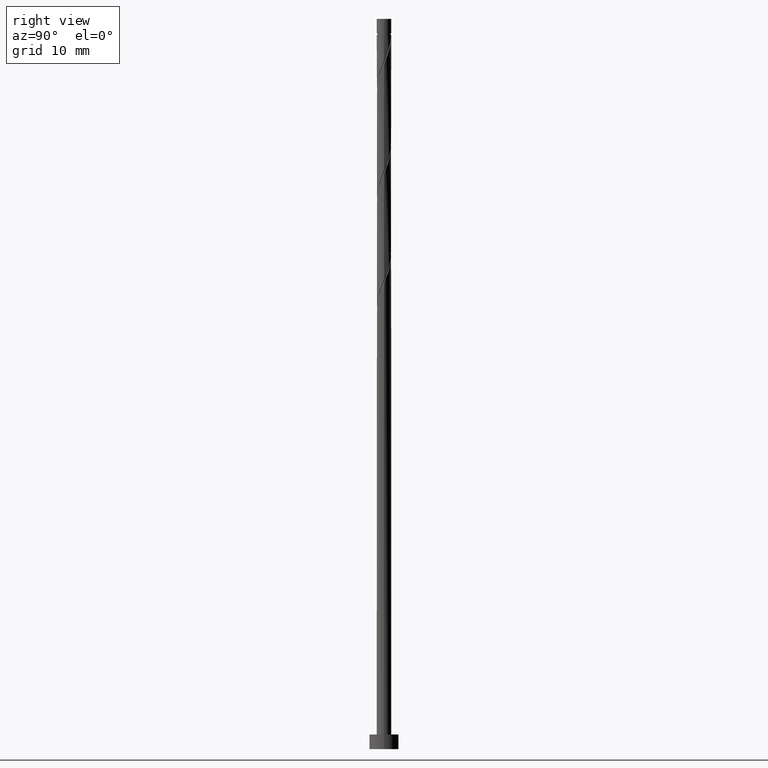
[diagram: clean part render]
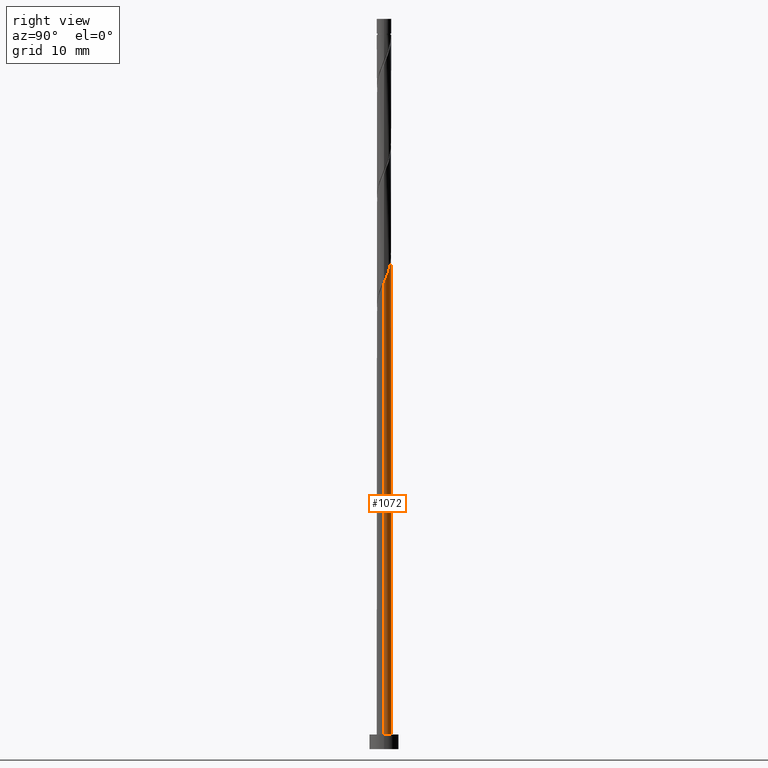
[diagram: same view with one face highlighted and labeled with its STEP entity id]
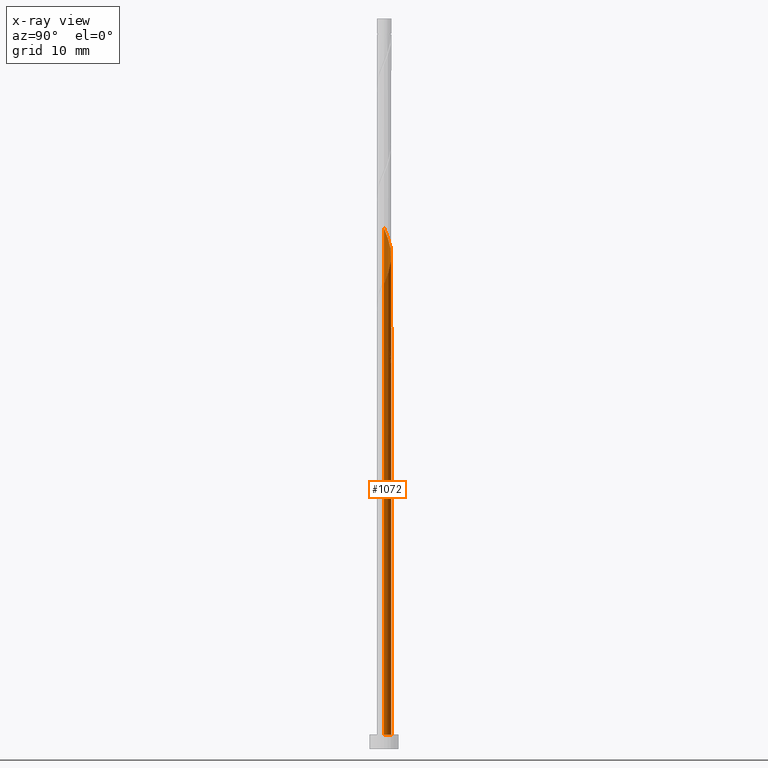
[diagram: x-ray of the same camera — body ghosted, the highlighted face saturated]
A machine part, right view. The second image highlights one B-rep face of the part: STEP entity #1072.
The next image is the same camera in x-ray: the body ghosted, the highlighted face saturated — about 0% of this face is hidden behind the body in this view.
In plain terms, the highlighted cylindrical surface (edge-blend (fillet) strip) has radius 1 mm, axis along (-0, -0, -1).
Its self-contained STEP definition (entity closure, byte-faithful):
#15 = VERTEX_POINT ( 'NONE', #653 ) ;
#18 = CARTESIAN_POINT ( 'NONE',  ( -1.000000000000000222, 1.930935673395703650E-16, 56.78964864647364408 ) ) ;
#27 = FACE_OUTER_BOUND ( 'NONE', #1441, .T. ) ;
#75 = LINE ( 'NONE', #97, #591 ) ;
#97 = CARTESIAN_POINT ( 'NONE',  ( -1.000000000000000000, 0.000000000000000000, 100.0000000000000000 ) ) ;
#114 = AXIS2_PLACEMENT_3D ( 'NONE', #815, #954, #134 ) ;
#118 = CARTESIAN_POINT ( 'NONE',  ( -0.9999999999999995559, 0.03726283816067638144, 71.22138669025331126 ) ) ;
#123 = CARTESIAN_POINT ( 'NONE',  ( 0.000000000000000000, 0.000000000000000000, 2.000000000000000000 ) ) ;
#134 = DIRECTION ( 'NONE',  ( -1.000000000000000000, 0.000000000000000000, 0.000000000000000000 ) ) ;
#168 = EDGE_CURVE ( 'NONE', #15, #1192, #75, .T. ) ;
#169 = VERTEX_POINT ( 'NONE', #1016 ) ;
#208 = VECTOR ( 'NONE', #928, 1000.000000000000000 ) ;
#214 = CARTESIAN_POINT ( 'NONE',  ( -0.9116327376541116800, 0.4110057805399690567, 70.29999999999999716 ) ) ;
#228 = AXIS2_PLACEMENT_3D ( 'NONE', #244, #1363, #1157 ) ;
#236 = EDGE_CURVE ( 'NONE', #902, #452, #1296, .T. ) ;
#244 = CARTESIAN_POINT ( 'NONE',  ( 0.000000000000000000, 0.000000000000000000, 52.79999999999999716 ) ) ;
#258 = CARTESIAN_POINT ( 'NONE',  ( -0.8117578158769209740, 0.5839942194600310499, 55.30000000000000426 ) ) ;
#278 = AXIS2_PLACEMENT_3D ( 'NONE', #123, #461, #893 ) ;
#281 = CARTESIAN_POINT ( 'NONE',  ( -0.2753202675821135870, 0.9773893565945337425, 53.21666666666666856 ) ) ;
#310 = CARTESIAN_POINT ( 'NONE',  ( -1.000000000000000000, 0.000000000000000000, 100.0000000000000000 ) ) ;
#312 = CARTESIAN_POINT ( 'NONE',  ( -0.8391613293177733190, 0.5717512286855107595, 69.88333333333332575 ) ) ;
#327 = CARTESIAN_POINT ( 'NONE',  ( 0.07557042402773175849, 1.012610643405466027, 67.38333333333333997 ) ) ;
#340 = CARTESIAN_POINT ( 'NONE',  ( 0.5630650428037471400, 0.8264125831401735178, 66.13333333333333997 ) ) ;
#341 = CIRCLE ( 'NONE', #278, 1.000000000000000000 ) ;
#349 = CYLINDRICAL_SURFACE ( 'NONE', #114, 1.000000000000000000 ) ;
#353 = CARTESIAN_POINT ( 'NONE',  ( 1.000000000000000000, 1.224646799147353207E-16, 2.000000000000000000 ) ) ;
#364 = EDGE_CURVE ( 'NONE', #985, #966, #1253, .T. ) ;
#395 = CARTESIAN_POINT ( 'NONE',  ( -0.9116327376541116800, 0.4110057805399690567, 55.30000000000001137 ) ) ;
#452 = VERTEX_POINT ( 'NONE', #511 ) ;
#453 = CARTESIAN_POINT ( 'NONE',  ( 0.7087838784083370092, 0.7271290242001062776, 65.71666666666665435 ) ) ;
#456 = EDGE_CURVE ( 'NONE', #508, #452, #974, .T. ) ;
#461 = DIRECTION ( 'NONE',  ( 0.000000000000000000, 0.000000000000000000, 1.000000000000000000 ) ) ;
#468 = CARTESIAN_POINT ( 'NONE',  ( 1.000000000000000000, 1.224646799147353207E-16, 100.0000000000000000 ) ) ;
#488 = CARTESIAN_POINT ( 'NONE',  ( 1.000000000000000000, 7.866774965686214893E-17, 63.81035135352636445 ) ) ;
#508 = VERTEX_POINT ( 'NONE', #944 ) ;
#511 = CARTESIAN_POINT ( 'NONE',  ( 0.09987492177719117792, 0.9949999999999999956, 52.79999999999999716 ) ) ;
#516 = CARTESIAN_POINT ( 'NONE',  ( -0.8391613293177733190, 0.5717512286855107595, 54.88333333333332575 ) ) ;
#534 = EDGE_CURVE ( 'NONE', #902, #15, #878, .T. ) ;
#572 = CARTESIAN_POINT ( 'NONE',  ( -0.9972268124083832896, 0.07442233948093028573, 71.13333333333331154 ) ) ;
#591 = VECTOR ( 'NONE', #876, 1000.000000000000000 ) ;
#602 = CARTESIAN_POINT ( 'NONE',  ( -0.9999999999999997780, -8.453207281310098825E-15, 56.31035135352637155 ) ) ;
#620 = CARTESIAN_POINT ( 'NONE',  ( -0.2464583156134442510, 0.9691533927428537254, 53.63333333333333286 ) ) ;
#629 = ORIENTED_EDGE ( 'NONE', *, *, #168, .F. ) ;
#630 = CARTESIAN_POINT ( 'NONE',  ( -0.7160823004724661267, 0.6980158586665925480, 54.46666666666666856 ) ) ;
#635 = ORIENTED_EDGE ( 'NONE', *, *, #364, .T. ) ;
#653 = CARTESIAN_POINT ( 'NONE',  ( -0.9999999999999997780, -8.453207281310098825E-15, 56.31035135352637155 ) ) ;
#667 = CARTESIAN_POINT ( 'NONE',  ( 0.9147317533455051608, 0.4408594147199549895, 64.88333333333335418 ) ) ;
#677 = ORIENTED_EDGE ( 'NONE', *, *, #534, .F. ) ;
#710 = CARTESIAN_POINT ( 'NONE',  ( -0.9972268124083832896, 0.07442233948093028573, 56.13333333333333997 ) ) ;
#718 = CARTESIAN_POINT ( 'NONE',  ( -0.9147317533455050498, 0.4408594147199556557, 55.71666666666665435 ) ) ;
#745 = CARTESIAN_POINT ( 'NONE',  ( -0.4341617696046364827, 0.9008349226211040950, 53.63333333333332575 ) ) ;
#763 = LINE ( 'NONE', #310, #901 ) ;
#769 = EDGE_CURVE ( 'NONE', #169, #508, #763, .T. ) ;
#792 = CARTESIAN_POINT ( 'NONE',  ( 1.000000000000000000, 7.866774965686214893E-17, 63.81035135352636445 ) ) ;
#815 = CARTESIAN_POINT ( 'NONE',  ( 0.000000000000000000, 0.000000000000000000, 100.0000000000000000 ) ) ;
#837 = CARTESIAN_POINT ( 'NONE',  ( -0.09987492177719069220, 0.9949999999999997735, 52.79999999999999716 ) ) ;
#848 = CARTESIAN_POINT ( 'NONE',  ( -0.09987492177719069220, 0.9949999999999997735, 52.79999999999999716 ) ) ;
#858 = ORIENTED_EDGE ( 'NONE', *, *, #456, .F. ) ;
#864 = EDGE_CURVE ( 'NONE', #966, #1192, #341, .T. ) ;
#876 = DIRECTION ( 'NONE',  ( -0.000000000000000000, -0.000000000000000000, -1.000000000000000000 ) ) ;
#878 =( BOUNDED_CURVE ( )  B_SPLINE_CURVE ( 2, ( #837, #281, #745, #1188, #630, #516, #395, #1272, #710, #1162, #602 ),
 .UNSPECIFIED., .F., .T. ) 
 B_SPLINE_CURVE_WITH_KNOTS ( ( 3, 2, 2, 2, 2, 3 ),
 ( 0.000000000000000000, 0.01388888888888883955, 0.02777777777777779011, 0.04166666666666662966, 0.05555555555555558023, 0.05852626155789682205 ),
 .UNSPECIFIED. ) 
 CURVE ( )  GEOMETRIC_REPRESENTATION_ITEM ( )  RATIONAL_B_SPLINE_CURVE ( ( 0.9523809523809509958, 0.9379121457259110839, 0.9523809523809509958, 0.9379121457259110839, 0.9523809523809509958, 0.9379121457259110839, 0.9523809523809509958, 0.9379121457259110839, 0.9523809523809509958, 0.9492862072850183353, 0.9475153373969229520 ) ) 
 REPRESENTATION_ITEM ( '' )  );
#893 = DIRECTION ( 'NONE',  ( 1.000000000000000000, 0.000000000000000000, 0.000000000000000000 ) ) ;
#901 = VECTOR ( 'NONE', #995, 1000.000000000000000 ) ;
#902 = VERTEX_POINT ( 'NONE', #848 ) ;
#919 = CARTESIAN_POINT ( 'NONE',  ( -0.09987492177719069220, 0.9949999999999999956, 67.79999999999999716 ) ) ;
#928 = DIRECTION ( 'NONE',  ( -0.000000000000000000, -0.000000000000000000, -1.000000000000000000 ) ) ;
#944 = CARTESIAN_POINT ( 'NONE',  ( -1.000000000000000222, 1.930935673395703404E-16, 56.78964864647364408 ) ) ;
#954 = DIRECTION ( 'NONE',  ( -0.000000000000000000, -0.000000000000000000, -1.000000000000000000 ) ) ;
#963 = CARTESIAN_POINT ( 'NONE',  ( -0.5630650428037468069, 0.8264125831401737399, 54.46666666666666856 ) ) ;
#966 = VERTEX_POINT ( 'NONE', #353 ) ;
#974 =( BOUNDED_CURVE ( )  B_SPLINE_CURVE ( 2, ( #18, #1084, #1278, #718, #258, #1427, #963, #1409, #620, #1069, #1168 ),
 .UNSPECIFIED., .F., .T. ) 
 B_SPLINE_CURVE_WITH_KNOTS ( ( 3, 2, 2, 2, 2, 3 ),
 ( 0.9335262615578967527, 0.9444444444444444198, 0.9583333333333333703, 0.9722222222222222099, 0.9861111111111111605, 1.000000000000000000 ),
 .UNSPECIFIED. ) 
 CURVE ( )  GEOMETRIC_REPRESENTATION_ITEM ( )  RATIONAL_B_SPLINE_CURVE ( ( 0.9475153373969248394, 0.9410068908218454098, 0.9523809523809528832, 0.9379121457259129713, 0.9523809523809528832, 0.9379121457259129713, 0.9523809523809528832, 0.9379121457259129713, 0.9523809523809528832, 0.9379121457259129713, 0.9523809523809528832 ) ) 
 REPRESENTATION_ITEM ( '' )  );
#985 = VERTEX_POINT ( 'NONE', #488 ) ;
#995 = DIRECTION ( 'NONE',  ( -0.000000000000000000, -0.000000000000000000, -1.000000000000000000 ) ) ;
#1016 = CARTESIAN_POINT ( 'NONE',  ( -1.000000000000000000, -8.581936326203144864E-17, 71.31035135352634313 ) ) ;
#1028 = ORIENTED_EDGE ( 'NONE', *, *, #769, .F. ) ;
#1061 =( BOUNDED_CURVE ( )  B_SPLINE_CURVE ( 2, ( #792, #1243, #1456, #667, #1346, #453, #340, #1481, #1465, #327, #919, #1334, #1132, #1144, #1238, #312, #214, #1247, #572, #118, #1127 ),
 .UNSPECIFIED., .F., .T. ) 
 B_SPLINE_CURVE_WITH_KNOTS ( ( 3, 2, 2, 2, 2, 2, 2, 2, 2, 2, 3 ),
 ( 0.1835262615578969470, 0.1944444444444444198, 0.2083333333333333703, 0.2222222222222222099, 0.2361111111111111605, 0.2500000000000000000, 0.2638888888888888395, 0.2777777777777777901, 0.2916666666666666297, 0.3055555555555555802, 0.3085262615578962531 ),
 .UNSPECIFIED. ) 
 CURVE ( )  GEOMETRIC_REPRESENTATION_ITEM ( )  RATIONAL_B_SPLINE_CURVE ( ( 0.9475153373969227300, 0.9410068908218438555, 0.9523809523809509958, 0.9379121457259110839, 0.9523809523809509958, 0.9379121457259110839, 0.9523809523809509958, 0.9379121457259110839, 0.9523809523809509958, 0.9379121457259110839, 0.9523809523809509958, 0.9379121457259110839, 0.9523809523809509958, 0.9379121457259110839, 0.9523809523809509958, 0.9379121457259110839, 0.9523809523809509958, 0.9379121457259110839, 0.9523809523809509958, 0.9492862072850190014, 0.9475153373969236181 ) ) 
 REPRESENTATION_ITEM ( '' )  );
#1069 = CARTESIAN_POINT ( 'NONE',  ( -0.07557042402773173073, 1.012610643405466249, 53.21666666666666856 ) ) ;
#1072 = ADVANCED_FACE ( 'NONE', ( #27 ), #349, .T. ) ;
#1084 = CARTESIAN_POINT ( 'NONE',  ( -0.9999999999999993339, 0.1381563937346801385, 56.45980160168809192 ) ) ;
#1127 = CARTESIAN_POINT ( 'NONE',  ( -1.000000000000000000, -8.581936326203146096E-17, 71.31035135352634313 ) ) ;
#1132 = CARTESIAN_POINT ( 'NONE',  ( -0.4341617696046364827, 0.9008349226211040950, 68.63333333333335418 ) ) ;
#1144 = CARTESIAN_POINT ( 'NONE',  ( -0.5930032716271594895, 0.8242804886476743365, 69.04999999999998295 ) ) ;
#1157 = DIRECTION ( 'NONE',  ( -1.000000000000000000, 0.000000000000000000, 0.000000000000000000 ) ) ;
#1162 = CARTESIAN_POINT ( 'NONE',  ( -1.000000000000000000, 0.03726283816066924826, 56.22138669025333968 ) ) ;
#1168 = CARTESIAN_POINT ( 'NONE',  ( 0.09987492177719117792, 0.9949999999999999956, 52.79999999999999005 ) ) ;
#1184 = ORIENTED_EDGE ( 'NONE', *, *, #236, .T. ) ;
#1188 = CARTESIAN_POINT ( 'NONE',  ( -0.5930032716271594895, 0.8242804886476743365, 54.05000000000001137 ) ) ;
#1192 = VERTEX_POINT ( 'NONE', #1209 ) ;
#1209 = CARTESIAN_POINT ( 'NONE',  ( -1.000000000000000000, 0.000000000000000000, 2.000000000000000000 ) ) ;
#1214 = ORIENTED_EDGE ( 'NONE', *, *, #864, .T. ) ;
#1237 = ORIENTED_EDGE ( 'NONE', *, *, #1438, .F. ) ;
#1238 = CARTESIAN_POINT ( 'NONE',  ( -0.7160823004724661267, 0.6980158586665925480, 69.46666666666665435 ) ) ;
#1243 = CARTESIAN_POINT ( 'NONE',  ( 0.9999999999999985567, 0.1381563937346822202, 64.14019839831192371 ) ) ;
#1247 = CARTESIAN_POINT ( 'NONE',  ( -0.9841041459904503741, 0.2502603323944274094, 70.71666666666669698 ) ) ;
#1253 = LINE ( 'NONE', #468, #208 ) ;
#1272 = CARTESIAN_POINT ( 'NONE',  ( -0.9841041459904503741, 0.2502603323944274094, 55.71666666666666856 ) ) ;
#1278 = CARTESIAN_POINT ( 'NONE',  ( -0.9625406160859105720, 0.2711375340762611774, 56.13333333333331865 ) ) ;
#1296 = CIRCLE ( 'NONE', #228, 1.000000000000000000 ) ;
#1334 = CARTESIAN_POINT ( 'NONE',  ( -0.2753202675821135870, 0.9773893565945337425, 68.21666666666666856 ) ) ;
#1346 = CARTESIAN_POINT ( 'NONE',  ( 0.8117578158769208629, 0.5839942194600310499, 65.29999999999999716 ) ) ;
#1363 = DIRECTION ( 'NONE',  ( 0.000000000000000000, -0.000000000000000000, -1.000000000000000000 ) ) ;
#1409 = CARTESIAN_POINT ( 'NONE',  ( -0.4173462071991568267, 0.9256961420802414242, 54.05000000000000426 ) ) ;
#1427 = CARTESIAN_POINT ( 'NONE',  ( -0.7087838784083368981, 0.7271290242001066106, 54.88333333333333997 ) ) ;
#1438 = EDGE_CURVE ( 'NONE', #985, #169, #1061, .T. ) ;
#1441 = EDGE_LOOP ( 'NONE', ( #1237, #635, #1214, #629, #677, #1184, #858, #1028 ) ) ;
#1456 = CARTESIAN_POINT ( 'NONE',  ( 0.9625406160859107940, 0.2711375340762608444, 64.46666666666668277 ) ) ;
#1465 = CARTESIAN_POINT ( 'NONE',  ( 0.2464583156134448894, 0.9691533927428533923, 66.96666666666668277 ) ) ;
#1481 = CARTESIAN_POINT ( 'NONE',  ( 0.4173462071991573263, 0.9256961420802408691, 66.55000000000001137 ) ) ;